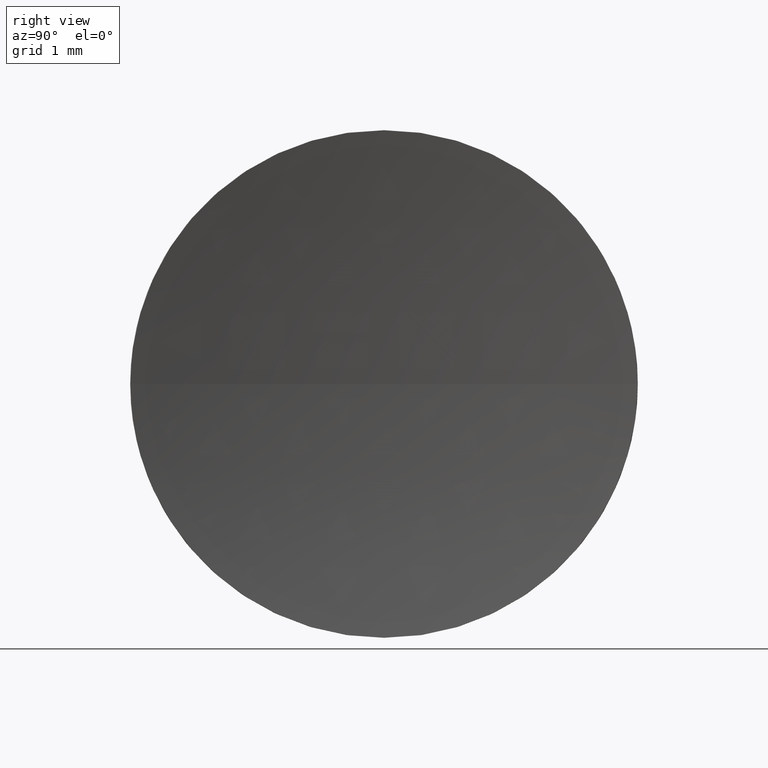
[diagram: clean part render]
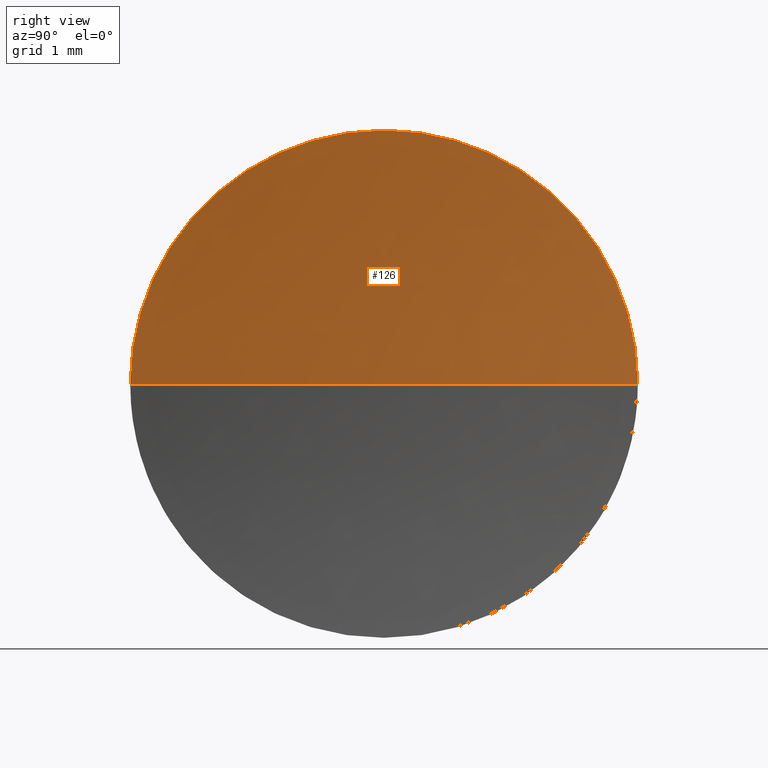
[diagram: same view with one face highlighted and labeled with its STEP entity id]
A machine part, right view. The second image highlights one B-rep face of the part: STEP entity #126.
In plain terms, the highlighted spherical surface has radius 20.65 mm.
Its self-contained STEP definition (entity closure, byte-faithful):
#8 = CARTESIAN_POINT ( 'NONE',  ( 24.05093720061594100, 13.03112609140304000, 0.0000000000000000000 ) ) ;
#10 = CARTESIAN_POINT ( 'NONE',  ( 44.45926883257450200, 13.03112609140303700, 0.0000000000000000000 ) ) ;
#13 = CARTESIAN_POINT ( 'NONE',  ( 24.05093720061594100, 9.881126091403023900, -3.857637417314176500E-016 ) ) ;
#18 = FACE_OUTER_BOUND ( 'NONE', #28, .T. ) ;
#20 = DIRECTION ( 'NONE',  ( 0.0000000000000000000, 0.0000000000000000000, 1.000000000000000000 ) ) ;
#21 = DIRECTION ( 'NONE',  ( 0.0000000000000000000, 0.0000000000000000000, 1.000000000000000000 ) ) ;
#22 = AXIS2_PLACEMENT_3D ( 'NONE', #30, #129, #43 ) ;
#28 = EDGE_LOOP ( 'NONE', ( #98, #83, #174, #80 ) ) ;
#30 = CARTESIAN_POINT ( 'NONE',  ( 44.45926883257450200, 13.03112609140303700, 0.0000000000000000000 ) ) ;
#34 = DIRECTION ( 'NONE',  ( -1.000000000000000000, -0.0000000000000000000, -0.0000000000000000000 ) ) ;
#35 = AXIS2_PLACEMENT_3D ( 'NONE', #73, #160, #148 ) ;
#36 = CARTESIAN_POINT ( 'NONE',  ( 44.45926883257450200, 13.03112609140303700, 0.0000000000000000000 ) ) ;
#43 = DIRECTION ( 'NONE',  ( 0.0000000000000000000, 1.000000000000000000, 1.224646799147353200E-016 ) ) ;
#47 = DIRECTION ( 'NONE',  ( 0.0000000000000000000, 1.000000000000000000, 0.0000000000000000000 ) ) ;
#58 = EDGE_CURVE ( 'NONE', #142, #138, #71, .T. ) ;
#61 = EDGE_CURVE ( 'NONE', #115, #109, #104, .T. ) ;
#62 = CARTESIAN_POINT ( 'NONE',  ( 24.05093720061594100, 16.18112609140305100, 0.0000000000000000000 ) ) ;
#68 = AXIS2_PLACEMENT_3D ( 'NONE', #8, #34, #21 ) ;
#71 = CIRCLE ( 'NONE', #35, 3.150000000000001700 ) ;
#73 = CARTESIAN_POINT ( 'NONE',  ( 24.05093720061594100, 13.03112609140304000, 0.0000000000000000000 ) ) ;
#77 = DIRECTION ( 'NONE',  ( 1.000000000000000000, 0.0000000000000000000, 0.0000000000000000000 ) ) ;
#80 = ORIENTED_EDGE ( 'NONE', *, *, #58, .F. ) ;
#82 = CIRCLE ( 'NONE', #68, 3.150000000000001700 ) ;
#83 = ORIENTED_EDGE ( 'NONE', *, *, #61, .T. ) ;
#85 = CARTESIAN_POINT ( 'NONE',  ( 23.80926883257448900, 13.03112609140303800, 0.0000000000000000000 ) ) ;
#92 = SPHERICAL_SURFACE ( 'NONE', #107, 20.65000000000000900 ) ;
#93 = CIRCLE ( 'NONE', #95, 20.65000000000000900 ) ;
#95 = AXIS2_PLACEMENT_3D ( 'NONE', #36, #20, #77 ) ;
#98 = ORIENTED_EDGE ( 'NONE', *, *, #140, .F. ) ;
#104 = CIRCLE ( 'NONE', #22, 20.65000000000000900 ) ;
#107 = AXIS2_PLACEMENT_3D ( 'NONE', #10, #166, #47 ) ;
#109 = VERTEX_POINT ( 'NONE', #85 ) ;
#111 = CARTESIAN_POINT ( 'NONE',  ( 24.05093720061594100, 13.03112609140304000, 3.150000000000001200 ) ) ;
#115 = VERTEX_POINT ( 'NONE', #13 ) ;
#126 = ADVANCED_FACE ( 'NONE', ( #18 ), #92, .F. ) ;
#129 = DIRECTION ( 'NONE',  ( 0.0000000000000000000, 1.224646799147353200E-016, -1.000000000000000000 ) ) ;
#138 = VERTEX_POINT ( 'NONE', #62 ) ;
#140 = EDGE_CURVE ( 'NONE', #115, #142, #82, .T. ) ;
#142 = VERTEX_POINT ( 'NONE', #111 ) ;
#148 = DIRECTION ( 'NONE',  ( 0.0000000000000000000, 0.0000000000000000000, 1.000000000000000000 ) ) ;
#160 = DIRECTION ( 'NONE',  ( -1.000000000000000000, -0.0000000000000000000, -0.0000000000000000000 ) ) ;
#166 = DIRECTION ( 'NONE',  ( 0.0000000000000000000, 0.0000000000000000000, -1.000000000000000000 ) ) ;
#169 = EDGE_CURVE ( 'NONE', #138, #109, #93, .T. ) ;
#174 = ORIENTED_EDGE ( 'NONE', *, *, #169, .F. ) ;